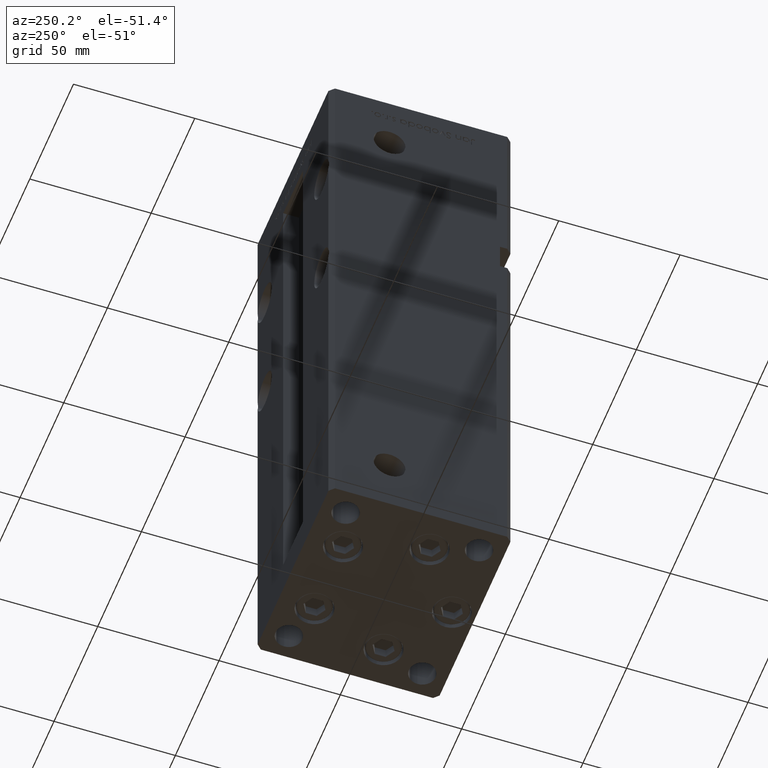
[diagram: clean part render]
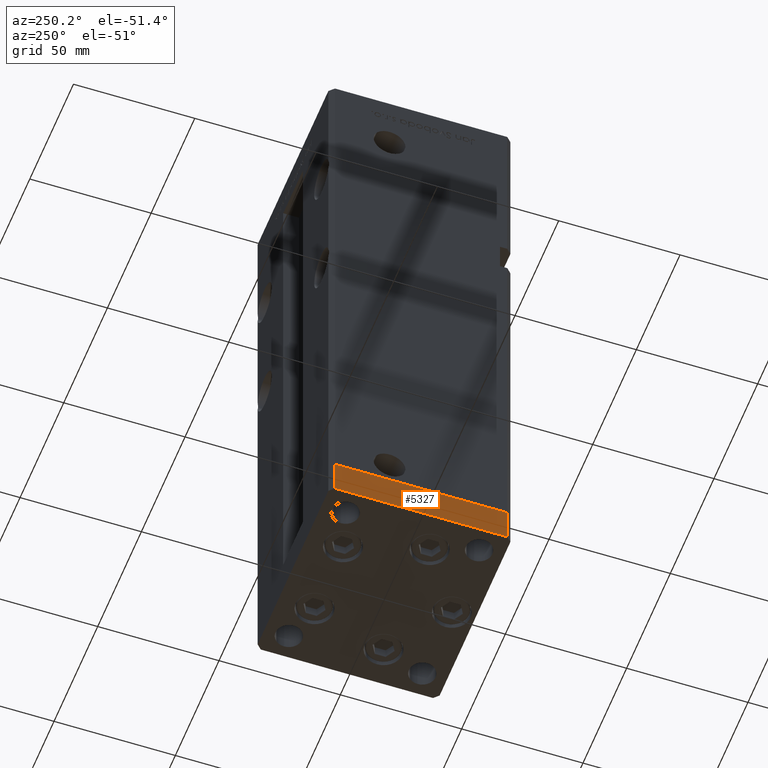
[diagram: same view with one face highlighted and labeled with its STEP entity id]
A machine part, auxiliary view. The second image highlights one B-rep face of the part: STEP entity #5327.
In plain terms, the highlighted planar face has unit normal (-1, -0, 0).
Its self-contained STEP definition (entity closure, byte-faithful):
#2670 = CARTESIAN_POINT ( 'NONE',  ( 42.50000000000000711, -35.50000000000000000, 0.000000000000000000 ) ) ;
#3383 = LINE ( 'NONE', #39686, #10815 ) ;
#5094 = DIRECTION ( 'NONE',  ( -1.172770800660376741E-15, 1.000000000000000000, 0.000000000000000000 ) ) ;
#5327 = ADVANCED_FACE ( 'NONE', ( #42453 ), #20953, .T. ) ;
#5451 = CARTESIAN_POINT ( 'NONE',  ( 42.50000000000000711, -35.50000000000000000, -15.00000000000000000 ) ) ;
#5624 = DIRECTION ( 'NONE',  ( 1.000000000000000000, 1.172770800660376741E-15, -0.000000000000000000 ) ) ;
#10815 = VECTOR ( 'NONE', #15493, 1000.000000000000000 ) ;
#13399 = VERTEX_POINT ( 'NONE', #29485 ) ;
#13989 = CARTESIAN_POINT ( 'NONE',  ( 42.49999999999992895, 35.50000000000000000, -15.00000000000000000 ) ) ;
#14253 = ORIENTED_EDGE ( 'NONE', *, *, #21422, .T. ) ;
#15078 = VERTEX_POINT ( 'NONE', #19236 ) ;
#15493 = DIRECTION ( 'NONE',  ( -1.172770800660376741E-15, 1.000000000000000000, 0.000000000000000000 ) ) ;
#16026 = CARTESIAN_POINT ( 'NONE',  ( 42.50000000000000711, -35.50000000000000000, 0.000000000000000000 ) ) ;
#16655 = VERTEX_POINT ( 'NONE', #16026 ) ;
#19073 = DIRECTION ( 'NONE',  ( -1.172770800660376741E-15, 1.000000000000000000, 0.000000000000000000 ) ) ;
#19236 = CARTESIAN_POINT ( 'NONE',  ( 42.49999999999992895, 35.50000000000000000, 0.000000000000000000 ) ) ;
#20953 = PLANE ( 'NONE',  #29229 ) ;
#21422 = EDGE_CURVE ( 'NONE', #27634, #15078, #32191, .T. ) ;
#22010 = VECTOR ( 'NONE', #38751, 1000.000000000000000 ) ;
#25987 = EDGE_CURVE ( 'NONE', #13399, #27634, #3383, .T. ) ;
#26556 = EDGE_CURVE ( 'NONE', #13399, #16655, #46295, .T. ) ;
#27634 = VERTEX_POINT ( 'NONE', #13989 ) ;
#28813 = VECTOR ( 'NONE', #19073, 1000.000000000000000 ) ;
#29121 = EDGE_LOOP ( 'NONE', ( #52989, #37853, #32483, #14253 ) ) ;
#29229 = AXIS2_PLACEMENT_3D ( 'NONE', #50766, #5624, #5094 ) ;
#29485 = CARTESIAN_POINT ( 'NONE',  ( 42.50000000000000711, -35.50000000000000000, -15.00000000000000000 ) ) ;
#32191 = LINE ( 'NONE', #36228, #38987 ) ;
#32483 = ORIENTED_EDGE ( 'NONE', *, *, #25987, .T. ) ;
#36228 = CARTESIAN_POINT ( 'NONE',  ( 42.49999999999992895, 35.50000000000000000, -15.00000000000000000 ) ) ;
#37846 = EDGE_CURVE ( 'NONE', #16655, #15078, #39492, .T. ) ;
#37853 = ORIENTED_EDGE ( 'NONE', *, *, #26556, .F. ) ;
#38751 = DIRECTION ( 'NONE',  ( 0.000000000000000000, 0.000000000000000000, 1.000000000000000000 ) ) ;
#38987 = VECTOR ( 'NONE', #39747, 1000.000000000000000 ) ;
#39492 = LINE ( 'NONE', #2670, #28813 ) ;
#39686 = CARTESIAN_POINT ( 'NONE',  ( 42.50000000000000711, -35.50000000000000000, -15.00000000000000000 ) ) ;
#39747 = DIRECTION ( 'NONE',  ( 0.000000000000000000, 0.000000000000000000, 1.000000000000000000 ) ) ;
#42453 = FACE_OUTER_BOUND ( 'NONE', #29121, .T. ) ;
#46295 = LINE ( 'NONE', #5451, #22010 ) ;
#50766 = CARTESIAN_POINT ( 'NONE',  ( 42.50000000000000711, -35.50000000000000000, -15.00000000000000000 ) ) ;
#52989 = ORIENTED_EDGE ( 'NONE', *, *, #37846, .F. ) ;